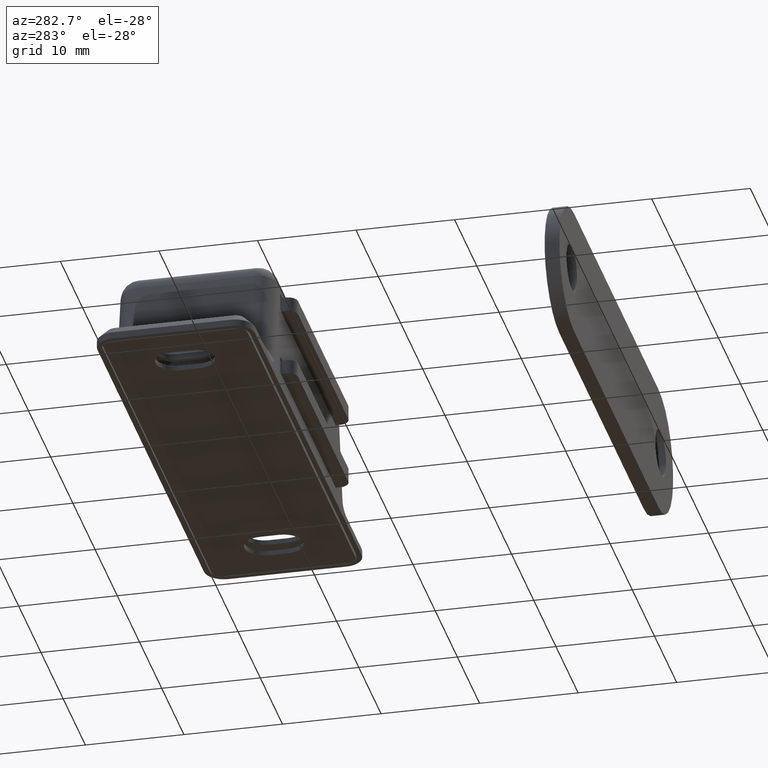
[diagram: clean part render]
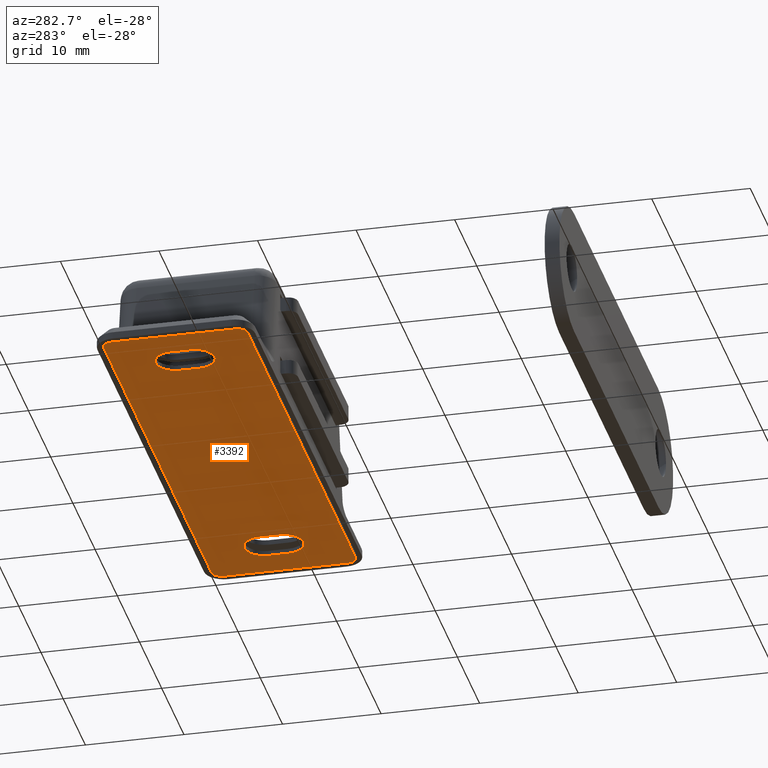
[diagram: same view with one face highlighted and labeled with its STEP entity id]
A machine part, auxiliary view. The second image highlights one B-rep face of the part: STEP entity #3392.
In plain terms, the highlighted planar face has unit normal (0, 0, -1).
Its self-contained STEP definition (entity closure, byte-faithful):
#67=FACE_BOUND('',#610,.T.);
#68=FACE_BOUND('',#611,.T.);
#225=PLANE('',#3707);
#409=FACE_OUTER_BOUND('',#609,.T.);
#609=EDGE_LOOP('',(#3057,#3058,#3059,#3060,#3061,#3062,#3063,#3064));
#610=EDGE_LOOP('',(#3065,#3066,#3067,#3068,#3069,#3070));
#611=EDGE_LOOP('',(#3071,#3072,#3073,#3074,#3075,#3076));
#672=B_SPLINE_CURVE_WITH_KNOTS('',3,(#6180,#6181,#6182,#6183,#6184,#6185,
#6186,#6187),.UNSPECIFIED.,.F.,.F.,(4,2,2,4),(-1.96878194955146,-1.89957228918608,
-1.83036262882069,-1.79045261958613),.UNSPECIFIED.);
#674=B_SPLINE_CURVE_WITH_KNOTS('',3,(#6219,#6220,#6221,#6222,#6223,#6224,
#6225,#6226),.UNSPECIFIED.,.F.,.F.,(4,2,2,4),(0.,0.0399100092350087,0.109119669600394,
0.178329329965779),.UNSPECIFIED.);
#676=B_SPLINE_CURVE_WITH_KNOTS('',3,(#6274,#6275,#6276,#6277,#6278,#6279,
#6280,#6281),.UNSPECIFIED.,.F.,.F.,(4,2,2,4),(-0.984390974775735,-0.915181314410349,
-0.845971654044964,-0.806061644810401),.UNSPECIFIED.);
#678=B_SPLINE_CURVE_WITH_KNOTS('',3,(#6313,#6314,#6315,#6316,#6317,#6318,
#6319,#6320),.UNSPECIFIED.,.F.,.F.,(4,2,2,4),(0.984390974775734,1.02430098401074,
1.09351064437613,1.16272030474151),.UNSPECIFIED.);
#934=LINE('',#6146,#1230);
#939=LINE('',#6193,#1235);
#944=LINE('',#6240,#1240);
#949=LINE('',#6287,#1245);
#953=LINE('',#6332,#1249);
#956=LINE('',#6338,#1252);
#957=LINE('',#6342,#1253);
#958=LINE('',#6346,#1254);
#1230=VECTOR('',#4548,2.);
#1235=VECTOR('',#4561,2.);
#1240=VECTOR('',#4574,2.);
#1245=VECTOR('',#4587,2.);
#1249=VECTOR('',#4599,12.6);
#1252=VECTOR('',#4604,48.6);
#1253=VECTOR('',#4607,12.6);
#1254=VECTOR('',#4610,48.6);
#1364=CIRCLE('',#3689,2.);
#1366=CIRCLE('',#3693,2.);
#1368=CIRCLE('',#3697,2.);
#1370=CIRCLE('',#3701,2.);
#1372=CIRCLE('',#3705,1.);
#1373=CIRCLE('',#3708,1.);
#1374=CIRCLE('',#3709,1.);
#1375=CIRCLE('',#3710,1.);
#1647=VERTEX_POINT('',#6137);
#1648=VERTEX_POINT('',#6139);
#1650=VERTEX_POINT('',#6145);
#1652=VERTEX_POINT('',#6151);
#1654=VERTEX_POINT('',#6179);
#1656=VERTEX_POINT('',#6192);
#1659=VERTEX_POINT('',#6231);
#1660=VERTEX_POINT('',#6233);
#1662=VERTEX_POINT('',#6239);
#1664=VERTEX_POINT('',#6245);
#1666=VERTEX_POINT('',#6273);
#1668=VERTEX_POINT('',#6286);
#1671=VERTEX_POINT('',#6325);
#1672=VERTEX_POINT('',#6327);
#1673=VERTEX_POINT('',#6331);
#1675=VERTEX_POINT('',#6337);
#1676=VERTEX_POINT('',#6339);
#1677=VERTEX_POINT('',#6341);
#1678=VERTEX_POINT('',#6343);
#1679=VERTEX_POINT('',#6345);
#2109=EDGE_CURVE('',#1648,#1647,#1364,.T.);
#2112=EDGE_CURVE('',#1650,#1648,#934,.T.);
#2115=EDGE_CURVE('',#1652,#1650,#1366,.T.);
#2118=EDGE_CURVE('',#1654,#1652,#672,.T.);
#2121=EDGE_CURVE('',#1656,#1654,#939,.T.);
#2124=EDGE_CURVE('',#1647,#1656,#674,.T.);
#2127=EDGE_CURVE('',#1660,#1659,#1368,.T.);
#2130=EDGE_CURVE('',#1662,#1660,#944,.T.);
#2133=EDGE_CURVE('',#1664,#1662,#1370,.T.);
#2136=EDGE_CURVE('',#1666,#1664,#676,.T.);
#2139=EDGE_CURVE('',#1668,#1666,#949,.T.);
#2142=EDGE_CURVE('',#1659,#1668,#678,.T.);
#2145=EDGE_CURVE('',#1671,#1672,#1372,.T.);
#2147=EDGE_CURVE('',#1672,#1673,#953,.T.);
#2150=EDGE_CURVE('',#1675,#1671,#956,.T.);
#2151=EDGE_CURVE('',#1676,#1675,#1373,.T.);
#2152=EDGE_CURVE('',#1677,#1676,#957,.T.);
#2153=EDGE_CURVE('',#1678,#1677,#1374,.T.);
#2154=EDGE_CURVE('',#1679,#1678,#958,.T.);
#2155=EDGE_CURVE('',#1673,#1679,#1375,.T.);
#3057=ORIENTED_EDGE('',*,*,#2145,.F.);
#3058=ORIENTED_EDGE('',*,*,#2150,.F.);
#3059=ORIENTED_EDGE('',*,*,#2151,.F.);
#3060=ORIENTED_EDGE('',*,*,#2152,.F.);
#3061=ORIENTED_EDGE('',*,*,#2153,.F.);
#3062=ORIENTED_EDGE('',*,*,#2154,.F.);
#3063=ORIENTED_EDGE('',*,*,#2155,.F.);
#3064=ORIENTED_EDGE('',*,*,#2147,.F.);
#3065=ORIENTED_EDGE('',*,*,#2118,.T.);
#3066=ORIENTED_EDGE('',*,*,#2115,.T.);
#3067=ORIENTED_EDGE('',*,*,#2112,.T.);
#3068=ORIENTED_EDGE('',*,*,#2109,.T.);
#3069=ORIENTED_EDGE('',*,*,#2124,.T.);
#3070=ORIENTED_EDGE('',*,*,#2121,.T.);
#3071=ORIENTED_EDGE('',*,*,#2136,.T.);
#3072=ORIENTED_EDGE('',*,*,#2133,.T.);
#3073=ORIENTED_EDGE('',*,*,#2130,.T.);
#3074=ORIENTED_EDGE('',*,*,#2127,.T.);
#3075=ORIENTED_EDGE('',*,*,#2142,.T.);
#3076=ORIENTED_EDGE('',*,*,#2139,.T.);
#3392=ADVANCED_FACE('',(#409,#67,#68),#225,.T.);
#3689=AXIS2_PLACEMENT_3D('',#6140,#4542,#4543);
#3693=AXIS2_PLACEMENT_3D('',#6152,#4554,#4555);
#3697=AXIS2_PLACEMENT_3D('',#6234,#4568,#4569);
#3701=AXIS2_PLACEMENT_3D('',#6246,#4580,#4581);
#3705=AXIS2_PLACEMENT_3D('',#6328,#4594,#4595);
#3707=AXIS2_PLACEMENT_3D('',#6336,#4602,#4603);
#3708=AXIS2_PLACEMENT_3D('',#6340,#4605,#4606);
#3709=AXIS2_PLACEMENT_3D('',#6344,#4608,#4609);
#3710=AXIS2_PLACEMENT_3D('',#6347,#4611,#4612);
#4542=DIRECTION('center_axis',(0.,0.,1.));
#4543=DIRECTION('ref_axis',(0.596852898468121,-0.802350682426458,0.));
#4548=DIRECTION('',(2.22044604925031E-15,-1.,0.));
#4554=DIRECTION('center_axis',(0.,0.,1.));
#4555=DIRECTION('ref_axis',(-1.,6.93889390390723E-17,0.));
#4561=DIRECTION('',(2.22044604925031E-15,1.,0.));
#4568=DIRECTION('center_axis',(0.,0.,1.));
#4569=DIRECTION('ref_axis',(-0.596852898466411,0.80235068242773,0.));
#4574=DIRECTION('',(0.,1.,0.));
#4580=DIRECTION('center_axis',(0.,0.,1.));
#4581=DIRECTION('ref_axis',(1.,1.38777878078145E-16,0.));
#4587=DIRECTION('',(0.,-1.,0.));
#4594=DIRECTION('center_axis',(0.,0.,1.));
#4595=DIRECTION('ref_axis',(-0.707106781186546,0.707106781186549,0.));
#4599=DIRECTION('',(0.,-1.,0.));
#4602=DIRECTION('center_axis',(0.,0.,-1.));
#4603=DIRECTION('ref_axis',(1.,0.,0.));
#4604=DIRECTION('',(-1.,0.,0.));
#4605=DIRECTION('center_axis',(0.,0.,1.));
#4606=DIRECTION('ref_axis',(0.707106781186546,0.707106781186549,0.));
#4607=DIRECTION('',(0.,1.,0.));
#4608=DIRECTION('center_axis',(0.,0.,1.));
#4609=DIRECTION('ref_axis',(0.707106781186546,-0.707106781186549,0.));
#4610=DIRECTION('',(1.,0.,0.));
#4611=DIRECTION('center_axis',(0.,0.,1.));
#4612=DIRECTION('ref_axis',(-0.707106781186546,-0.707106781186549,0.));
#6137=CARTESIAN_POINT('',(-18.8062942030672,-2.60470136485546,0.));
#6139=CARTESIAN_POINT('',(-22.,-1.,0.));
#6140=CARTESIAN_POINT('Origin',(-20.,-1.,0.));
#6145=CARTESIAN_POINT('',(-22.,1.,0.));
#6146=CARTESIAN_POINT('',(-22.,0.499999999999976,0.));
#6151=CARTESIAN_POINT('',(-18.8062942030633,2.60470136485257,0.));
#6152=CARTESIAN_POINT('Origin',(-20.,1.,0.));
#6179=CARTESIAN_POINT('',(-18.,1.,0.));
#6180=CARTESIAN_POINT('Ctrl Pts',(-18.,1.,0.));
#6181=CARTESIAN_POINT('Ctrl Pts',(-18.,1.23069886788462,0.));
#6182=CARTESIAN_POINT('Ctrl Pts',(-18.0422858108955,1.47626343200348,0.));
#6183=CARTESIAN_POINT('Ctrl Pts',(-18.2140922596288,1.93274148252207,0.));
#6184=CARTESIAN_POINT('Ctrl Pts',(-18.3435272881605,2.14400699297524,0.));
#6185=CARTESIAN_POINT('Ctrl Pts',(-18.5817134066205,2.41632344380316,0.));
#6186=CARTESIAN_POINT('Ctrl Pts',(-18.6906988845434,2.51871228000588,0.));
#6187=CARTESIAN_POINT('Ctrl Pts',(-18.8062942030633,2.60470136485257,0.));
#6192=CARTESIAN_POINT('',(-18.,-1.,0.));
#6193=CARTESIAN_POINT('',(-18.,-0.49999999999998,0.));
#6219=CARTESIAN_POINT('Ctrl Pts',(-18.8062942030672,-2.60470136485546,0.));
#6220=CARTESIAN_POINT('Ctrl Pts',(-18.6920063495601,-2.51697504205674,0.));
#6221=CARTESIAN_POINT('Ctrl Pts',(-18.5817134066215,-2.41632344380427,0.));
#6222=CARTESIAN_POINT('Ctrl Pts',(-18.3435272881605,-2.14400699297523,0.));
#6223=CARTESIAN_POINT('Ctrl Pts',(-18.2140922596288,-1.93274148252207,0.));
#6224=CARTESIAN_POINT('Ctrl Pts',(-18.0422858108955,-1.47626343200347,0.));
#6225=CARTESIAN_POINT('Ctrl Pts',(-18.,-1.23069886788462,0.));
#6226=CARTESIAN_POINT('Ctrl Pts',(-18.,-1.,0.));
#6231=CARTESIAN_POINT('',(18.8062942030672,2.60470136485546,0.));
#6233=CARTESIAN_POINT('',(22.,1.,0.));
#6234=CARTESIAN_POINT('Origin',(20.,1.,0.));
#6239=CARTESIAN_POINT('',(22.,-1.,0.));
#6240=CARTESIAN_POINT('',(22.,-0.5,0.));
#6245=CARTESIAN_POINT('',(18.8062942030633,-2.60470136485258,0.));
#6246=CARTESIAN_POINT('Origin',(20.,-1.,0.));
#6273=CARTESIAN_POINT('',(18.,-1.,0.));
#6274=CARTESIAN_POINT('Ctrl Pts',(18.,-1.,0.));
#6275=CARTESIAN_POINT('Ctrl Pts',(18.,-1.23069886788462,0.));
#6276=CARTESIAN_POINT('Ctrl Pts',(18.0422858108955,-1.47626343200348,0.));
#6277=CARTESIAN_POINT('Ctrl Pts',(18.2140922596288,-1.93274148252207,0.));
#6278=CARTESIAN_POINT('Ctrl Pts',(18.3435272881605,-2.14400699297524,0.));
#6279=CARTESIAN_POINT('Ctrl Pts',(18.5817134066205,-2.41632344380316,0.));
#6280=CARTESIAN_POINT('Ctrl Pts',(18.6906988845434,-2.51871228000589,0.));
#6281=CARTESIAN_POINT('Ctrl Pts',(18.8062942030633,-2.60470136485258,0.));
#6286=CARTESIAN_POINT('',(18.,1.,0.));
#6287=CARTESIAN_POINT('',(18.,0.5,0.));
#6313=CARTESIAN_POINT('Ctrl Pts',(18.8062942030672,2.60470136485546,0.));
#6314=CARTESIAN_POINT('Ctrl Pts',(18.6920063495601,2.51697504205673,0.));
#6315=CARTESIAN_POINT('Ctrl Pts',(18.5817134066215,2.41632344380427,0.));
#6316=CARTESIAN_POINT('Ctrl Pts',(18.3435272881605,2.14400699297524,0.));
#6317=CARTESIAN_POINT('Ctrl Pts',(18.2140922596288,1.93274148252207,0.));
#6318=CARTESIAN_POINT('Ctrl Pts',(18.0422858108955,1.47626343200348,0.));
#6319=CARTESIAN_POINT('Ctrl Pts',(18.,1.23069886788462,0.));
#6320=CARTESIAN_POINT('Ctrl Pts',(18.,1.,0.));
#6325=CARTESIAN_POINT('',(-24.3,7.3,0.));
#6327=CARTESIAN_POINT('',(-25.3,6.3,0.));
#6328=CARTESIAN_POINT('Origin',(-24.3,6.3,0.));
#6331=CARTESIAN_POINT('',(-25.3,-6.3,0.));
#6332=CARTESIAN_POINT('',(-25.3,7.3,0.));
#6336=CARTESIAN_POINT('Origin',(0.,0.,0.));
#6337=CARTESIAN_POINT('',(24.3,7.3,0.));
#6338=CARTESIAN_POINT('',(25.3,7.3,0.));
#6339=CARTESIAN_POINT('',(25.3,6.3,0.));
#6340=CARTESIAN_POINT('Origin',(24.3,6.3,0.));
#6341=CARTESIAN_POINT('',(25.3,-6.3,0.));
#6342=CARTESIAN_POINT('',(25.3,-7.3,0.));
#6343=CARTESIAN_POINT('',(24.3,-7.3,0.));
#6344=CARTESIAN_POINT('Origin',(24.3,-6.3,0.));
#6345=CARTESIAN_POINT('',(-24.3,-7.3,0.));
#6346=CARTESIAN_POINT('',(-25.3,-7.3,0.));
#6347=CARTESIAN_POINT('Origin',(-24.3,-6.3,0.));